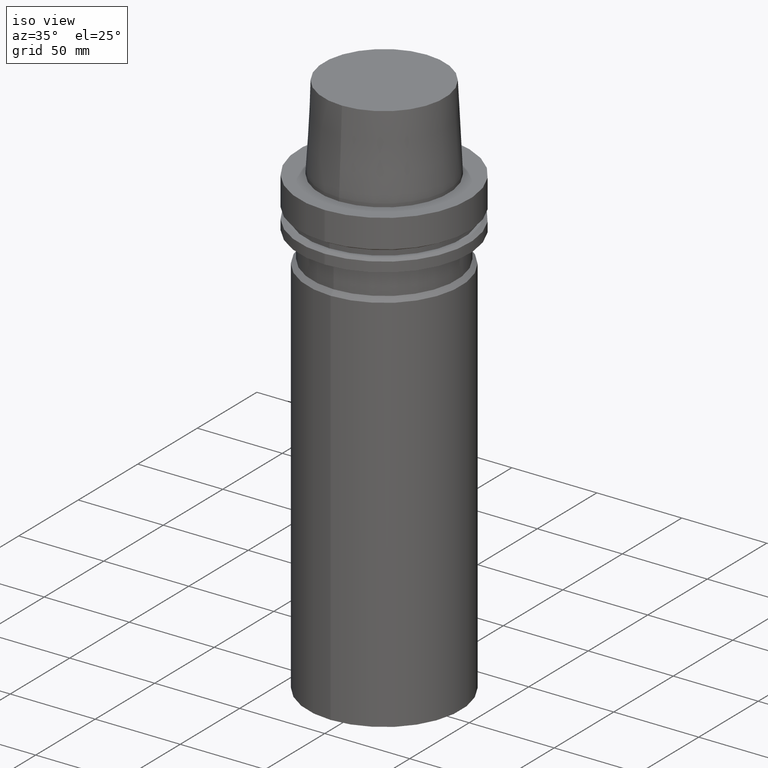
[diagram: clean part render]
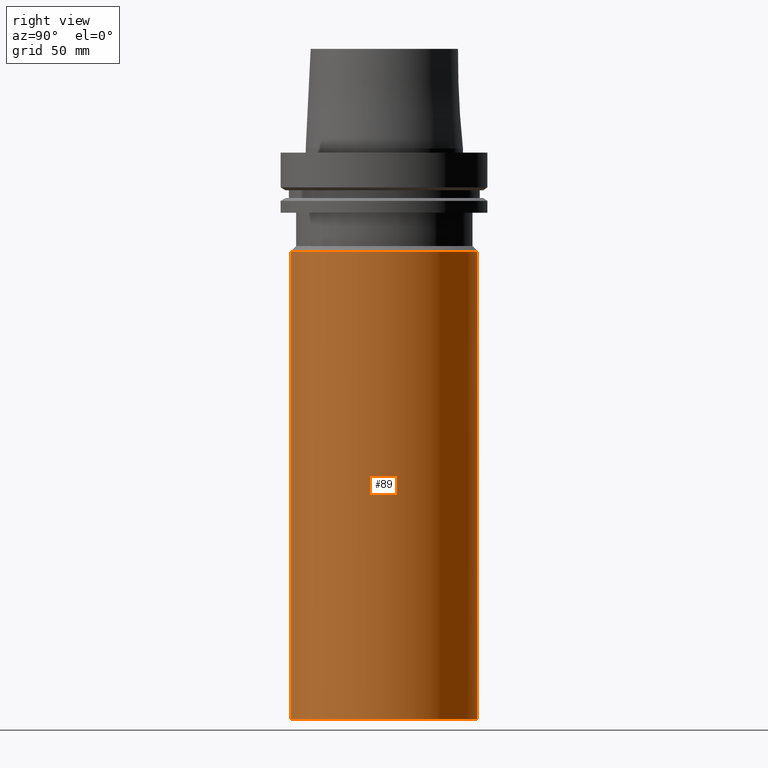
[diagram: tour spotlight — one face highlighted and labeled with its STEP entity id]
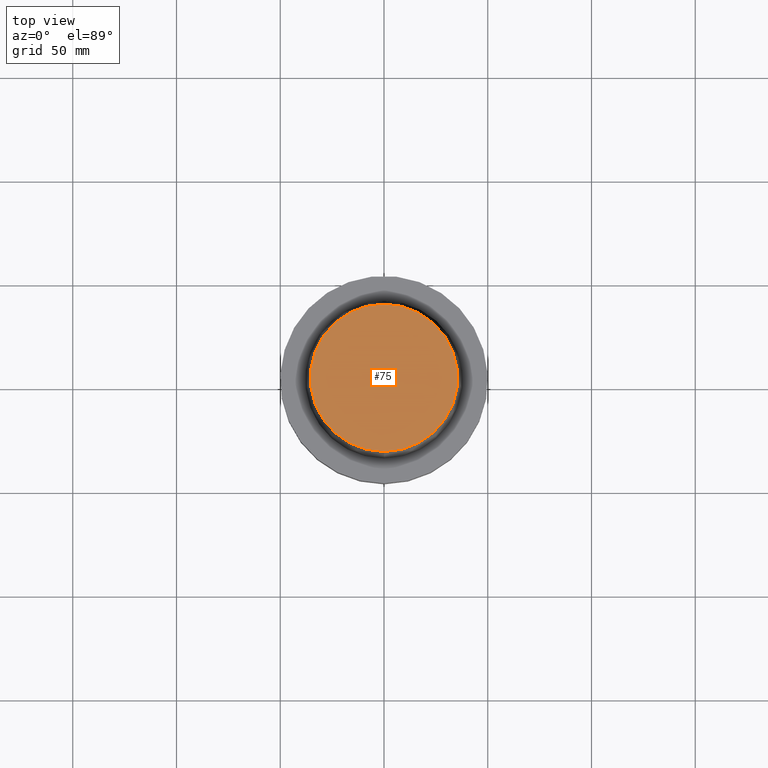
[diagram: tour spotlight — one face highlighted and labeled with its STEP entity id]
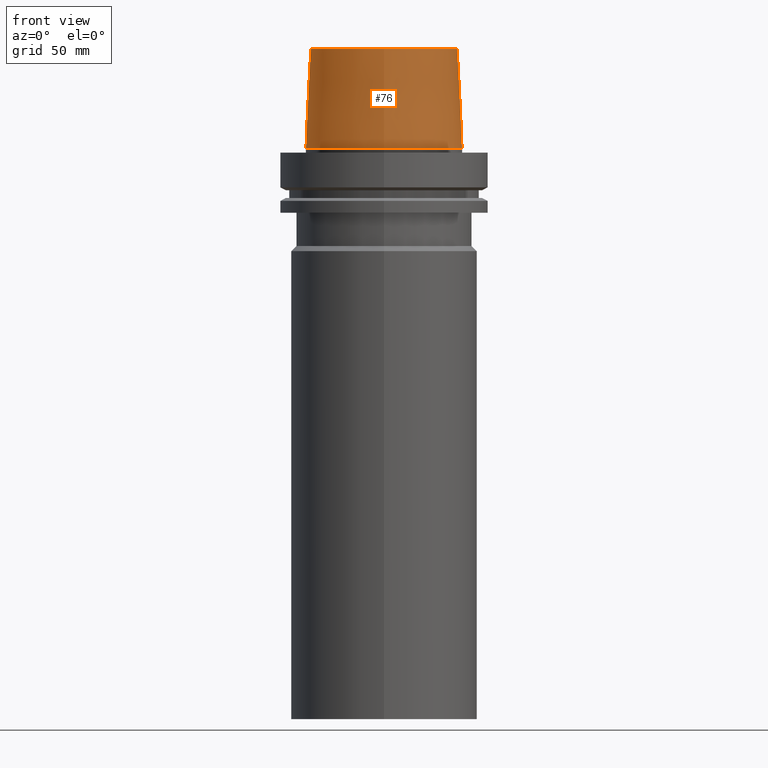
[diagram: tour spotlight — one face highlighted and labeled with its STEP entity id]
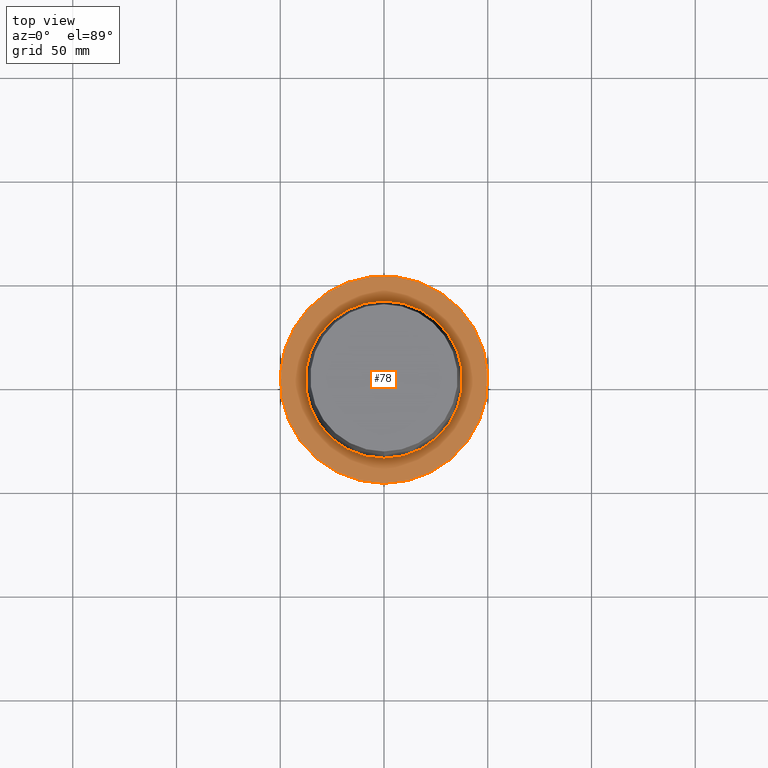
[diagram: tour spotlight — one face highlighted and labeled with its STEP entity id]
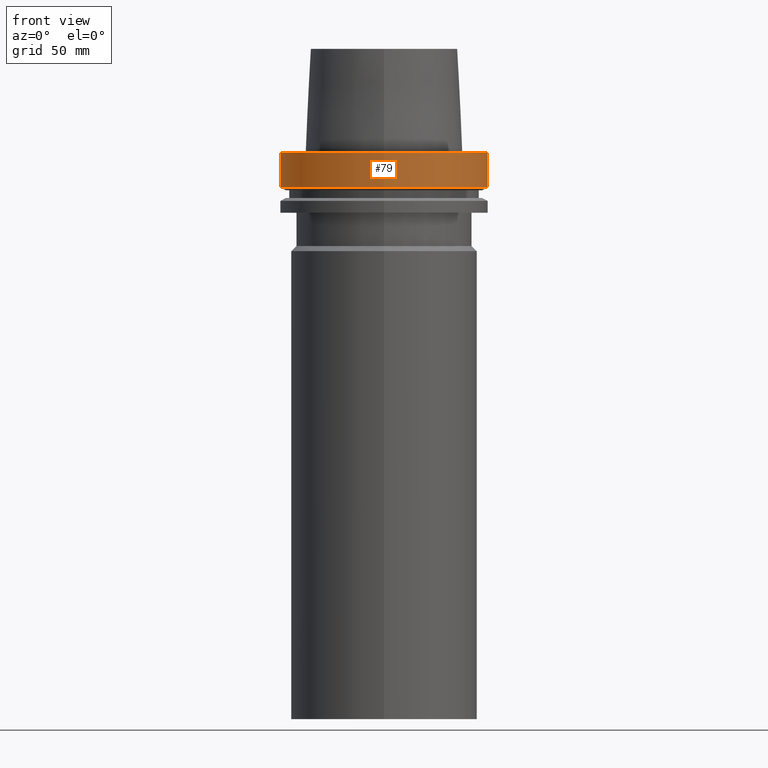
[diagram: tour spotlight — one face highlighted and labeled with its STEP entity id]
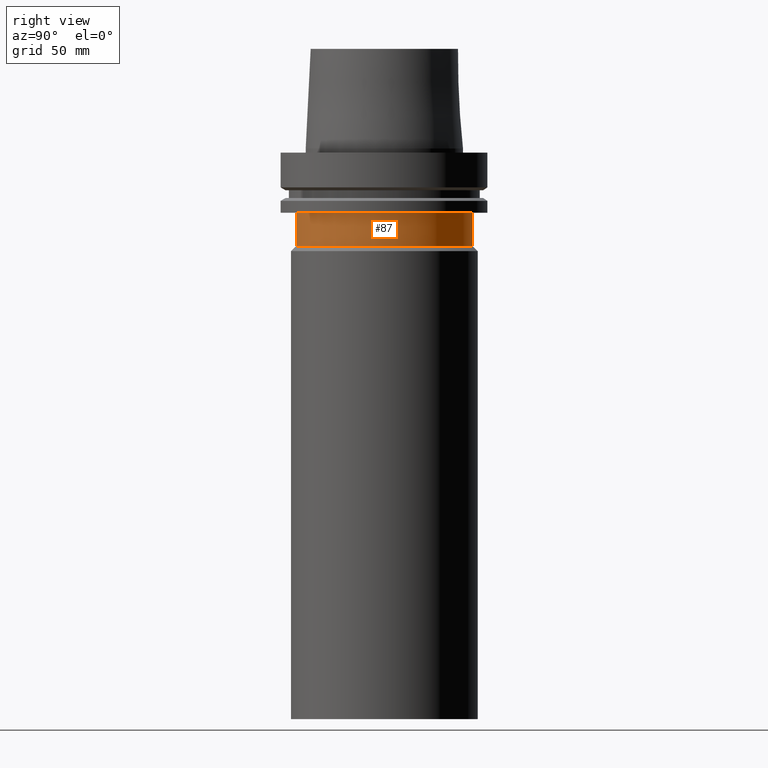
[diagram: tour spotlight — one face highlighted and labeled with its STEP entity id]
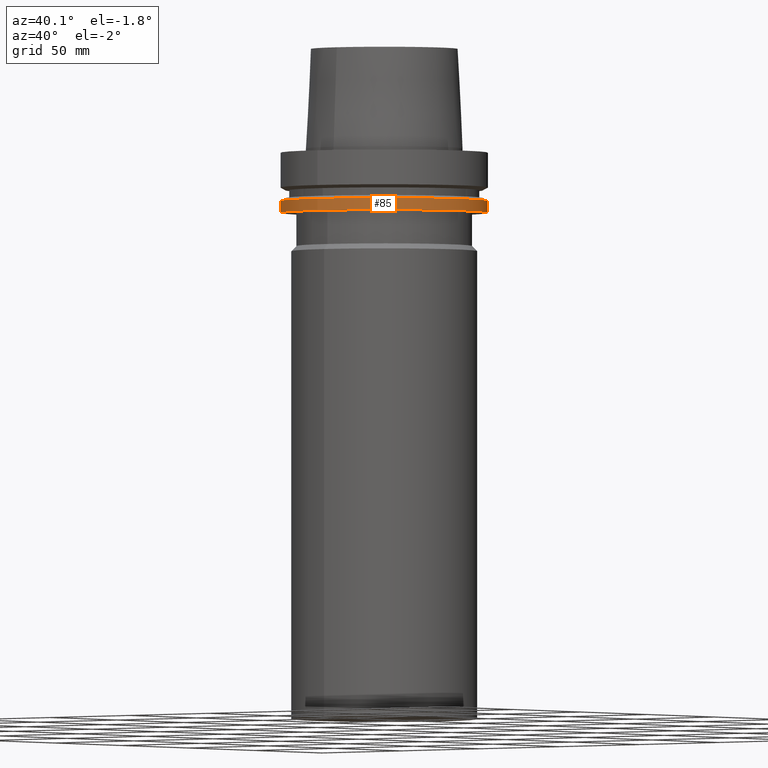
[diagram: tour spotlight — one face highlighted and labeled with its STEP entity id]
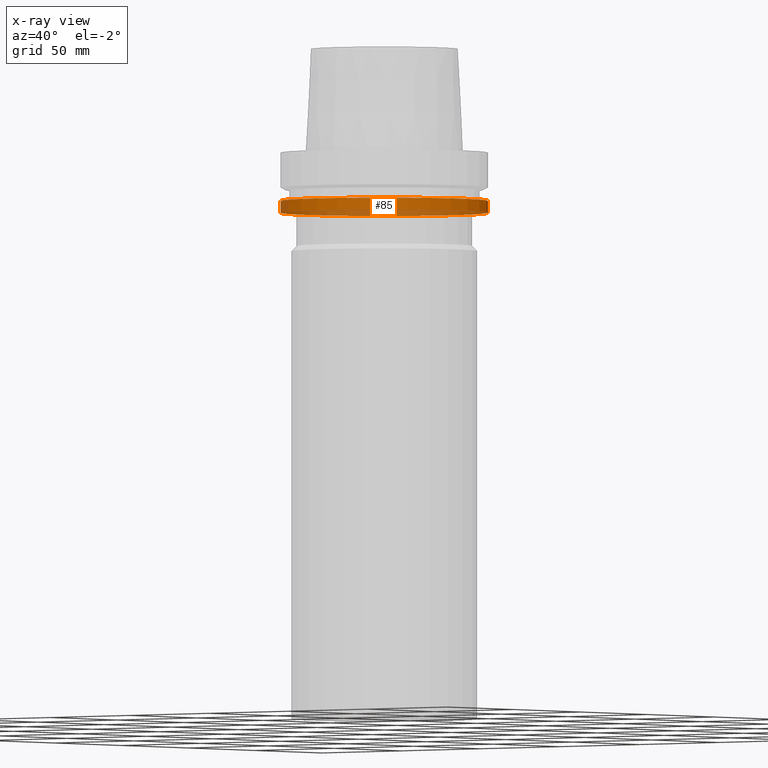
[diagram: x-ray of the same camera — body ghosted, this tour face saturated]
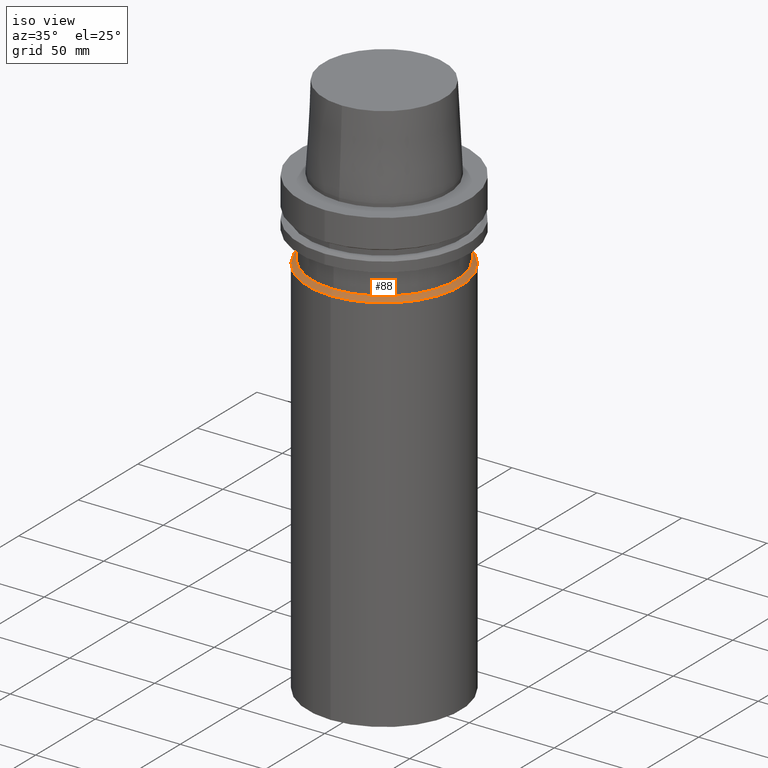
[diagram: tour spotlight — one face highlighted and labeled with its STEP entity id]
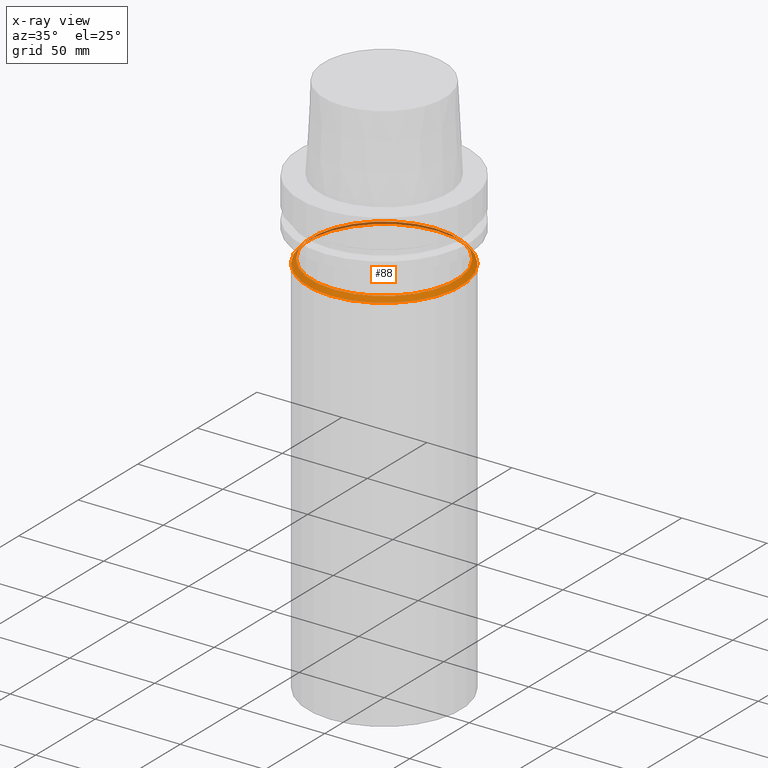
[diagram: x-ray of the same camera — body ghosted, this tour face saturated]
A machine part: a face-by-face anatomy tour. The part has 16 B-rep faces; the first image is the clean iso view, then the 8 largest visible faces are spotlighted one at a time (largest first), each with its STEP entity span.

Face 1 — right view, entity #89. In plain terms, the highlighted cylindrical surface (bore or boss wall) has radius 45 mm, axis along (-0, -0, 1).
Definition (entity closure, byte-faithful):
#89=ADVANCED_FACE('',(#133,#134),#135,.T.);
#133=FACE_BOUND('',#179,.T.);
#134=FACE_BOUND('',#180,.T.);
#135=CYLINDRICAL_SURFACE('',#181,45.0);
#179=EDGE_LOOP('',(#253));
#180=EDGE_LOOP('',(#254));
#181=AXIS2_PLACEMENT_3D('',#255,#256,#257);
#253=ORIENTED_EDGE('',*,*,#276,.F.);
#254=ORIENTED_EDGE('',*,*,#275,.T.);
#255=CARTESIAN_POINT('',(9.81248247816817E-015,1.96249649563363E-014,-160.25));
#256=DIRECTION('',(-6.12323399573677E-017,-1.22464679914735E-016,1.0));
#257=DIRECTION('',(1.23259516440783E-032,-1.0,-1.22464679914735E-016));
#275=EDGE_CURVE('',#303,#303,#304,.T.);
#276=EDGE_CURVE('',#305,#305,#306,.T.);
#303=VERTEX_POINT('',#333);
#304=CIRCLE('',#334,45.0);
#305=VERTEX_POINT('',#335);
#306=CIRCLE('',#336,45.0);
#333=CARTESIAN_POINT('',(2.90853614797497E-015,-45.0,-47.5000000000001));
#334=AXIS2_PLACEMENT_3D('',#376,#377,#378);
#335=CARTESIAN_POINT('',(1.67164288083614E-014,-45.0,-273.0));
#336=AXIS2_PLACEMENT_3D('',#379,#380,#381);
#376=CARTESIAN_POINT('',(2.90853614797497E-015,5.81707229594993E-015,-47.5000000000001));
#377=DIRECTION('',(6.12323399573677E-017,1.22464679914735E-016,-1.0));
#378=DIRECTION('',(1.23259516440783E-032,-1.0,-1.22464679914735E-016));
#379=CARTESIAN_POINT('',(1.67164288083614E-014,3.34328576167227E-014,-273.0));
#380=DIRECTION('',(6.12323399573677E-017,1.22464679914735E-016,-1.0));
#381=DIRECTION('',(1.23259516440783E-032,-1.0,-1.22464679914735E-016));

Face 2 — top view, entity #75. In plain terms, the highlighted planar face has unit normal (-0, -0, 1).
Definition (entity closure, byte-faithful):
#75=ADVANCED_FACE('',(#92),#93,.T.);
#92=FACE_OUTER_BOUND('',#138,.T.);
#93=PLANE('',#139);
#138=EDGE_LOOP('',(#184));
#139=AXIS2_PLACEMENT_3D('',#185,#186,#187);
#184=ORIENTED_EDGE('',*,*,#262,.F.);
#185=CARTESIAN_POINT('',(-3.06161699786838E-015,-17.7500000007809,50.0));
#186=DIRECTION('',(-6.12323399573677E-017,-1.22464679914735E-016,1.0));
#187=DIRECTION('',(-1.23259516440783E-032,1.0,1.22464679914735E-016));
#262=EDGE_CURVE('',#277,#277,#278,.T.);
#277=VERTEX_POINT('',#307);
#278=CIRCLE('',#308,35.5000000015618);
#307=CARTESIAN_POINT('',(-3.06161699786838E-015,-35.5000000015618,50.0));
#308=AXIS2_PLACEMENT_3D('',#337,#338,#339);
#337=CARTESIAN_POINT('',(-3.06161699786838E-015,-6.12323399573676E-015,50.0));
#338=DIRECTION('',(6.12323399573677E-017,1.22464679914735E-016,-1.0));
#339=DIRECTION('',(1.23259516440783E-032,-1.0,-1.22464679914735E-016));

Face 3 — front view, entity #76. In plain terms, the highlighted conical surface has half-angle 2.862 deg.
Definition (entity closure, byte-faithful):
#76=ADVANCED_FACE('',(#94,#95),#96,.T.);
#94=FACE_BOUND('',#140,.T.);
#95=FACE_BOUND('',#141,.T.);
#96=CONICAL_SURFACE('',#142,36.7000000007809,0.0499583956894865);
#140=EDGE_LOOP('',(#188));
#141=EDGE_LOOP('',(#189));
#142=AXIS2_PLACEMENT_3D('',#190,#191,#192);
#188=ORIENTED_EDGE('',*,*,#263,.F.);
#189=ORIENTED_EDGE('',*,*,#262,.T.);
#190=CARTESIAN_POINT('',(-1.59204083889156E-015,-3.18408167778312E-015,26.0));
#191=DIRECTION('',(6.12323399573677E-017,1.22464679914735E-016,-1.0));
#192=DIRECTION('',(1.23259516440783E-032,-1.0,-1.22464679914735E-016));
#262=EDGE_CURVE('',#277,#277,#278,.T.);
#263=EDGE_CURVE('',#279,#279,#280,.T.);
#277=VERTEX_POINT('',#307);
#278=CIRCLE('',#308,35.5000000015618);
#279=VERTEX_POINT('',#309);
#280=CIRCLE('',#310,37.9);
#307=CARTESIAN_POINT('',(-3.06161699786838E-015,-35.5000000015618,50.0));
#308=AXIS2_PLACEMENT_3D('',#337,#338,#339);
#309=CARTESIAN_POINT('',(-1.22464679914735E-016,-37.9,2.0));
#310=AXIS2_PLACEMENT_3D('',#340,#341,#342);
#337=CARTESIAN_POINT('',(-3.06161699786838E-015,-6.12323399573676E-015,50.0));
#338=DIRECTION('',(6.12323399573677E-017,1.22464679914735E-016,-1.0));
#339=DIRECTION('',(1.23259516440783E-032,-1.0,-1.22464679914735E-016));
#340=CARTESIAN_POINT('',(-1.22464679914735E-016,-2.44929359829471E-016,2.0));
#341=DIRECTION('',(6.12323399573677E-017,1.22464679914735E-016,-1.0));
#342=DIRECTION('',(1.23259516440783E-032,-1.0,-1.22464679914735E-016));

Face 4 — top view, entity #78. In plain terms, the highlighted planar face has unit normal (-0, -0, 1).
Definition (entity closure, byte-faithful):
#78=ADVANCED_FACE('',(#100,#101),#102,.T.);
#100=FACE_OUTER_BOUND('',#146,.T.);
#101=FACE_BOUND('',#147,.T.);
#102=PLANE('',#148);
#146=EDGE_LOOP('',(#198));
#147=EDGE_LOOP('',(#199));
#148=AXIS2_PLACEMENT_3D('',#200,#201,#202);
#198=ORIENTED_EDGE('',*,*,#265,.F.);
#199=ORIENTED_EDGE('',*,*,#264,.T.);
#200=CARTESIAN_POINT('',(5.41725574757242E-031,-43.95,-5.38232268225262E-015));
#201=DIRECTION('',(-6.12323399573677E-017,-1.22464679914735E-016,1.0));
#202=DIRECTION('',(-1.23259516440783E-032,1.0,1.22464679914735E-016));
#264=EDGE_CURVE('',#281,#281,#282,.T.);
#265=EDGE_CURVE('',#283,#283,#284,.T.);
#281=VERTEX_POINT('',#311);
#282=CIRCLE('',#312,37.9);
#283=VERTEX_POINT('',#313);
#284=CIRCLE('',#314,50.0);
#311=CARTESIAN_POINT('',(4.67153567310568E-031,-37.9,-4.64141136876847E-015));
#312=AXIS2_PLACEMENT_3D('',#343,#344,#345);
#313=CARTESIAN_POINT('',(6.16297582203915E-031,-50.0,-6.12323399573676E-015));
#314=AXIS2_PLACEMENT_3D('',#346,#347,#348);
#343=CARTESIAN_POINT('',(0.0,0.0,0.0));
#344=DIRECTION('',(6.12323399573677E-017,1.22464679914735E-016,-1.0));
#345=DIRECTION('',(1.23259516440783E-032,-1.0,-1.22464679914735E-016));
#346=CARTESIAN_POINT('',(0.0,0.0,0.0));
#347=DIRECTION('',(6.12323399573677E-017,1.22464679914735E-016,-1.0));
#348=DIRECTION('',(1.23259516440783E-032,-1.0,-1.22464679914735E-016));

Face 5 — front view, entity #79. In plain terms, the highlighted cylindrical surface (bore or boss wall) has radius 50 mm, axis along (-0, -0, 1).
Definition (entity closure, byte-faithful):
#79=ADVANCED_FACE('',(#103,#104),#105,.T.);
#103=FACE_BOUND('',#149,.T.);
#104=FACE_BOUND('',#150,.T.);
#105=CYLINDRICAL_SURFACE('',#151,50.0);
#149=EDGE_LOOP('',(#203));
#150=EDGE_LOOP('',(#204));
#151=AXIS2_PLACEMENT_3D('',#205,#206,#207);
#203=ORIENTED_EDGE('',*,*,#266,.F.);
#204=ORIENTED_EDGE('',*,*,#265,.T.);
#205=CARTESIAN_POINT('',(5.12894471071548E-016,1.0257889421431E-015,-8.37620236999999));
#206=DIRECTION('',(-6.12323399573677E-017,-1.22464679914735E-016,1.0));
#207=DIRECTION('',(1.23259516440783E-032,-1.0,-1.22464679914735E-016));
#265=EDGE_CURVE('',#283,#283,#284,.T.);
#266=EDGE_CURVE('',#285,#285,#286,.T.);
#283=VERTEX_POINT('',#313);
#284=CIRCLE('',#314,50.0);
#285=VERTEX_POINT('',#315);
#286=CIRCLE('',#316,50.0);
#313=CARTESIAN_POINT('',(6.16297582203915E-031,-50.0,-6.12323399573676E-015));
#314=AXIS2_PLACEMENT_3D('',#346,#347,#348);
#315=CARTESIAN_POINT('',(1.0257889421431E-015,-50.0,-16.75240474));
#316=AXIS2_PLACEMENT_3D('',#349,#350,#351);
#346=CARTESIAN_POINT('',(0.0,0.0,0.0));
#347=DIRECTION('',(6.12323399573677E-017,1.22464679914735E-016,-1.0));
#348=DIRECTION('',(1.23259516440783E-032,-1.0,-1.22464679914735E-016));
#349=CARTESIAN_POINT('',(1.0257889421431E-015,2.05157788428619E-015,-16.75240474));
#350=DIRECTION('',(6.12323399573677E-017,1.22464679914735E-016,-1.0));
#351=DIRECTION('',(1.23259516440783E-032,-1.0,-1.22464679914735E-016));

Face 6 — right view, entity #87. In plain terms, the highlighted cylindrical surface (bore or boss wall) has radius 42.5 mm, axis along (-0, -0, 1).
Definition (entity closure, byte-faithful):
#87=ADVANCED_FACE('',(#127,#128),#129,.T.);
#127=FACE_BOUND('',#173,.T.);
#128=FACE_BOUND('',#174,.T.);
#129=CYLINDRICAL_SURFACE('',#175,42.5);
#173=EDGE_LOOP('',(#243));
#174=EDGE_LOOP('',(#244));
#175=AXIS2_PLACEMENT_3D('',#245,#246,#247);
#243=ORIENTED_EDGE('',*,*,#274,.F.);
#244=ORIENTED_EDGE('',*,*,#273,.T.);
#245=CARTESIAN_POINT('',(2.2655965784226E-015,4.53119315684521E-015,-37.0));
#246=DIRECTION('',(-6.12323399573677E-017,-1.22464679914735E-016,1.0));
#247=DIRECTION('',(1.23259516440783E-032,-1.0,-1.22464679914735E-016));
#273=EDGE_CURVE('',#299,#299,#300,.T.);
#274=EDGE_CURVE('',#301,#301,#302,.T.);
#299=VERTEX_POINT('',#329);
#300=CIRCLE('',#330,42.5);
#301=VERTEX_POINT('',#331);
#302=CIRCLE('',#332,42.5);
#329=CARTESIAN_POINT('',(1.77573785876366E-015,-42.5,-29.0));
#330=AXIS2_PLACEMENT_3D('',#370,#371,#372);
#331=CARTESIAN_POINT('',(2.75545529808154E-015,-42.5,-45.0));
#332=AXIS2_PLACEMENT_3D('',#373,#374,#375);
#370=CARTESIAN_POINT('',(1.77573785876366E-015,3.55147571752732E-015,-29.0));
#371=DIRECTION('',(6.12323399573677E-017,1.22464679914735E-016,-1.0));
#372=DIRECTION('',(1.23259516440783E-032,-1.0,-1.22464679914735E-016));
#373=CARTESIAN_POINT('',(2.75545529808154E-015,5.51091059616309E-015,-45.0));
#374=DIRECTION('',(6.12323399573676E-017,1.22464679914735E-016,-1.0));
#375=DIRECTION('',(1.23259516440783E-032,-1.0,-1.22464679914735E-016));

Face 7 — auxiliary view, entity #85. An x-ray twin of the same camera follows (body ghosted, this face saturated) — the face is partly hidden behind the body. In plain terms, the highlighted cylindrical surface (bore or boss wall) has radius 50 mm, axis along (-0, -0, 1).
Definition (entity closure, byte-faithful):
#85=ADVANCED_FACE('',(#121,#122),#123,.T.);
#121=FACE_BOUND('',#167,.T.);
#122=FACE_BOUND('',#168,.T.);
#123=CYLINDRICAL_SURFACE('',#169,50.0);
#167=EDGE_LOOP('',(#233));
#168=EDGE_LOOP('',(#234));
#169=AXIS2_PLACEMENT_3D('',#235,#236,#237);
#233=ORIENTED_EDGE('',*,*,#272,.F.);
#234=ORIENTED_EDGE('',*,*,#271,.T.);
#235=CARTESIAN_POINT('',(1.59962125745764E-015,3.19924251491527E-015,-26.12379763));
#236=DIRECTION('',(-6.12323399573677E-017,-1.22464679914735E-016,1.0));
#237=DIRECTION('',(1.23259516440783E-032,-1.0,-1.22464679914735E-016));
#271=EDGE_CURVE('',#295,#295,#296,.T.);
#272=EDGE_CURVE('',#297,#297,#298,.T.);
#295=VERTEX_POINT('',#325);
#296=CIRCLE('',#326,50.0);
#297=VERTEX_POINT('',#327);
#298=CIRCLE('',#328,50.0);
#325=CARTESIAN_POINT('',(1.42350465615161E-015,-50.0,-23.24759526));
#326=AXIS2_PLACEMENT_3D('',#364,#365,#366);
#327=CARTESIAN_POINT('',(1.77573785876366E-015,-50.0,-29.0));
#328=AXIS2_PLACEMENT_3D('',#367,#368,#369);
#364=CARTESIAN_POINT('',(1.42350465615161E-015,2.84700931230322E-015,-23.24759526));
#365=DIRECTION('',(6.12323399573677E-017,1.22464679914735E-016,-1.0));
#366=DIRECTION('',(1.23259516440783E-032,-1.0,-1.22464679914735E-016));
#367=CARTESIAN_POINT('',(1.77573785876366E-015,3.55147571752732E-015,-29.0));
#368=DIRECTION('',(6.12323399573677E-017,1.22464679914735E-016,-1.0));
#369=DIRECTION('',(1.23259516440783E-032,-1.0,-1.22464679914735E-016));

Face 8 — iso view, entity #88. An x-ray twin of the same camera follows (body ghosted, this face saturated) — the face is partly hidden behind the body. In plain terms, the highlighted conical surface has half-angle 45 deg.
Definition (entity closure, byte-faithful):
#88=ADVANCED_FACE('',(#130,#131),#132,.T.);
#130=FACE_BOUND('',#176,.T.);
#131=FACE_BOUND('',#177,.T.);
#132=CONICAL_SURFACE('',#178,43.75,0.785398163397434);
#176=EDGE_LOOP('',(#248));
#177=EDGE_LOOP('',(#249));
#178=AXIS2_PLACEMENT_3D('',#250,#251,#252);
#248=ORIENTED_EDGE('',*,*,#275,.F.);
#249=ORIENTED_EDGE('',*,*,#274,.T.);
#250=CARTESIAN_POINT('',(2.83199572302826E-015,5.66399144605651E-015,-46.25));
#251=DIRECTION('',(6.12323399573677E-017,1.22464679914735E-016,-1.0));
#252=DIRECTION('',(1.23259516440783E-032,-1.0,-1.22464679914735E-016));
#274=EDGE_CURVE('',#301,#301,#302,.T.);
#275=EDGE_CURVE('',#303,#303,#304,.T.);
#301=VERTEX_POINT('',#331);
#302=CIRCLE('',#332,42.5);
#303=VERTEX_POINT('',#333);
#304=CIRCLE('',#334,45.0);
#331=CARTESIAN_POINT('',(2.75545529808154E-015,-42.5,-45.0));
#332=AXIS2_PLACEMENT_3D('',#373,#374,#375);
#333=CARTESIAN_POINT('',(2.90853614797497E-015,-45.0,-47.5000000000001));
#334=AXIS2_PLACEMENT_3D('',#376,#377,#378);
#373=CARTESIAN_POINT('',(2.75545529808154E-015,5.51091059616309E-015,-45.0));
#374=DIRECTION('',(6.12323399573676E-017,1.22464679914735E-016,-1.0));
#375=DIRECTION('',(1.23259516440783E-032,-1.0,-1.22464679914735E-016));
#376=CARTESIAN_POINT('',(2.90853614797497E-015,5.81707229594993E-015,-47.5000000000001));
#377=DIRECTION('',(6.12323399573677E-017,1.22464679914735E-016,-1.0));
#378=DIRECTION('',(1.23259516440783E-032,-1.0,-1.22464679914735E-016));